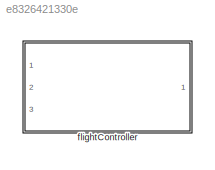
MODEL slx_e8326421330e
KIND library
CONFIG AbsTol = auto
CONFIG EnableMultiTasking = off
CONFIG FixedStep = auto
CONFIG MaxStep = auto
CONFIG MinStep = auto
CONFIG RelTol = 1e-3
CONFIG SampleTimeConstraint = Unconstrained
CONFIG SolverName = VariableStepAuto
CONFIG StartTime = 0.0
CONFIG StopTime = 10.0
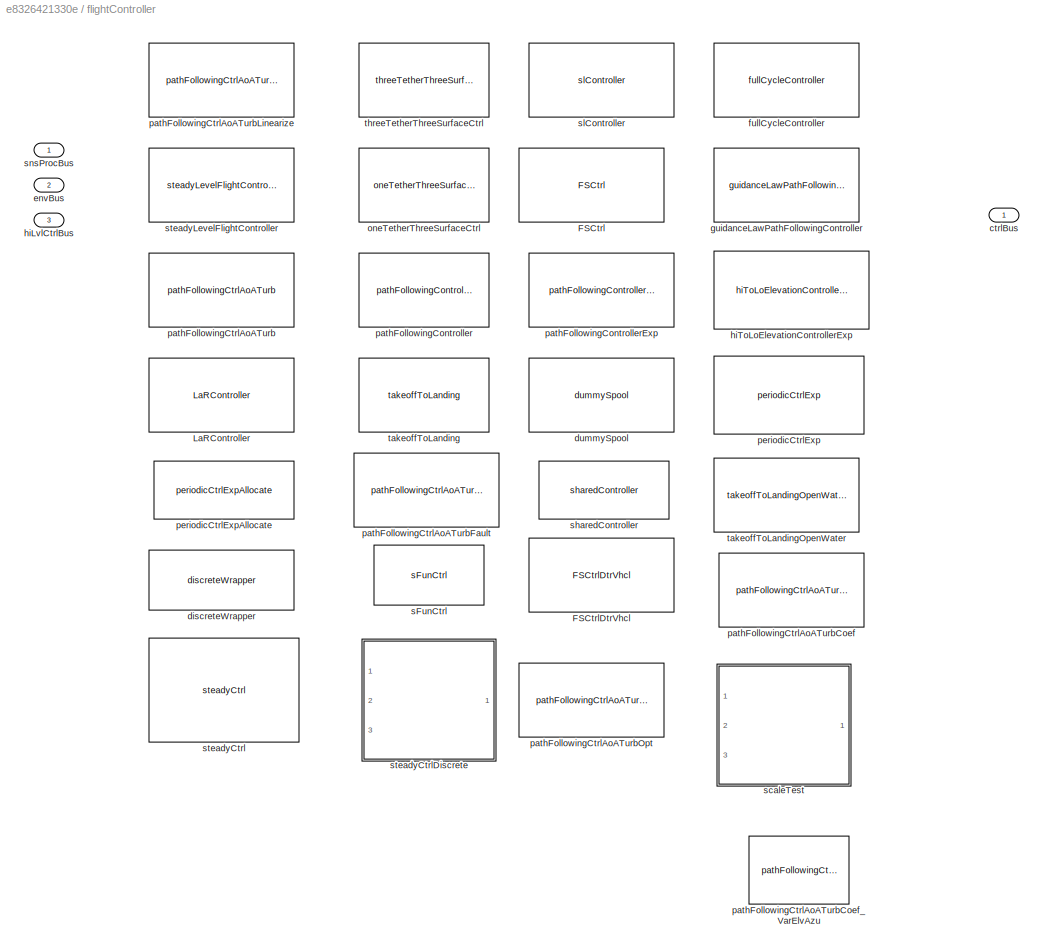
BLOCK [SubSystem] flightController
  InitFcn = initializeVariantsFromBlock(gcb)
  LoadFcn = initializeVariantsFromBlock(gcb)
  Ports = [3, 1]
  PreSaveFcn = initializeVariantsFromBlock(gcb)
  RequestExecContextInheritance = off
  StartFcn = initializeVariantsFromBlock(gcb)
  Variant = on
BLOCK [Reference] flightController/FSCtrl  REF=FSCtrl_cl/FSCtrl
  Ports = [3, 1]
  SourceBlock = FSCtrl_cl/FSCtrl
BLOCK [Reference] flightController/FSCtrlDtrVhcl  REF=FSCtrlDtrVhcl_cl/FSCtrlDtrVhcl
  Ports = [3, 1]
  SourceBlock = FSCtrlDtrVhcl_cl/FSCtrlDtrVhcl
BLOCK [Reference] flightController/LaRController  REF=LaRController_cl/LaRController
  Ports = [3, 1]
  SourceBlock = LaRController_cl/LaRController
BLOCK [Outport] flightController/ctrlBus
  OutDataTypeStr = Bus: fltCtrlBus
  VectorParamsAs1DForOutWhenUnconnected = off
BLOCK [Reference] flightController/discreteWrapper  REF=discreteWrapper/discreteWrapper
  Ports = [3, 1]
  SourceBlock = discreteWrapper/discreteWrapper
  SourceType = SubSystem
BLOCK [Reference] flightController/dummySpool  REF=dummySpool_cl/dummySpool
  Ports = [3, 1]
  SourceBlock = dummySpool_cl/dummySpool
BLOCK [Inport] flightController/envBus
  OutDataTypeStr = Bus: envBus
  Port = 2
BLOCK [Reference] flightController/fullCycleController  REF=fullCycleController_cl/fullCycleController
  Ports = [3, 1]
  SourceBlock = fullCycleController_cl/fullCycleController
BLOCK [Reference] flightController/guidanceLawPathFollowingController  REF=guidanceLawPathFollowingController/guidanceLawPathFollowingController
  Ports = [3, 1]
  SourceBlock = guidanceLawPathFollowingController/guidanceLawPathFollowingController
BLOCK [Inport] flightController/hiLvlCtrlBus
  OutDataTypeStr = Bus: hiLvlCtrlBus
  Port = 3
BLOCK [Reference] flightController/hiToLoElevationControllerExp  REF=hiToLoElevationControllerExp/hiToLoElevationControllerExp
  Ports = [3, 1]
  SourceBlock = hiToLoElevationControllerExp/hiToLoElevationControllerExp
BLOCK [Reference] flightController/oneTetherThreeSurfaceCtrl  REF=oneTetherThreeSurfaceCtrl_cl/oneTetherThreeSurfaceCtrl
  Ports = [3, 1]
  SourceBlock = oneTetherThreeSurfaceCtrl_cl/oneTetherThreeSurfaceCtrl
  SourceType = SubSystem
BLOCK [Reference] flightController/pathFollowingController  REF=pathFollowingController_cl/pathFollowingController
  Ports = [3, 1]
  SourceBlock = pathFollowingController_cl/pathFollowingController
BLOCK [Reference] flightController/pathFollowingControllerExp  REF=pathFollowingControllerExp_cl/pathFollowingControllerExp
  Ports = [3, 1]
  SourceBlock = pathFollowingControllerExp_cl/pathFollowingControllerExp
BLOCK [Reference] flightController/pathFollowingCtrlAoATurb  REF=pathFollowingCtrlAoATurb_cl/pathFollowingCtrlAoATurb
  Ports = [3, 1]
  SourceBlock = pathFollowingCtrlAoATurb_cl/pathFollowingCtrlAoATurb
BLOCK [Reference] flightController/pathFollowingCtrlAoATurbCoef  REF=pathFollowingCtrlAoATurbCoef_cl/pathFollowingCtrlAoATurbCoef
  Ports = [3, 1]
  SourceBlock = pathFollowingCtrlAoATurbCoef_cl/pathFollowingCtrlAoATurbCoef
BLOCK [Reference] flightController/pathFollowingCtrlAoATurbCoef_VarElvAzu  REF=pathFollowingCtrlAoATurbCoef_VarElvAzu_cl/pathFollowingCtrlAoATurbCoef_VarElvAzu
  Ports = [5, 1]
  SourceBlock = pathFollowingCtrlAoATurbCoef_VarElvAzu_cl/pathFollowingCtrlAoATurbCoef_VarElvAzu
BLOCK [Reference] flightController/pathFollowingCtrlAoATurbFault  REF=pathFollowingCtrlAoATurbFault_cl/pathFollowingCtrlAoATurbFault
  Ports = [3, 1]
  SourceBlock = pathFollowingCtrlAoATurbFault_cl/pathFollowingCtrlAoATurbFault
BLOCK [Reference] flightController/pathFollowingCtrlAoATurbLinearize  REF=pathFollowingCtrlAoATurbLinearize_cl/pathFollowingCtrlAoATurbLinearize
  Ports = [3, 1]
  SourceBlock = pathFollowingCtrlAoATurbLinearize_cl/pathFollowingCtrlAoATurbLinearize
BLOCK [Reference] flightController/pathFollowingCtrlAoATurbOpt  REF=pathFollowingCtrlAoATurbOpt_cl/pathFollowingCtrlAoATurbOpt
  Ports = [3, 1]
  SourceBlock = pathFollowingCtrlAoATurbOpt_cl/pathFollowingCtrlAoATurbOpt
BLOCK [Reference] flightController/periodicCtrlExp  REF=periodicCtrlExp/periodicCtrlExp
  Ports = [3, 1]
  SourceBlock = periodicCtrlExp/periodicCtrlExp
BLOCK [Reference] flightController/periodicCtrlExpAllocate  REF=periodicCtrlExpAllocate/periodicCtrlExpAllocate
  Ports = [3, 1]
  SourceBlock = periodicCtrlExpAllocate/periodicCtrlExpAllocate
BLOCK [Reference] flightController/sFunCtrl  REF=sFunCtrl/sFunCtrl
  Ports = [3, 1]
  SourceBlock = sFunCtrl/sFunCtrl
  SourceType = SubSystem
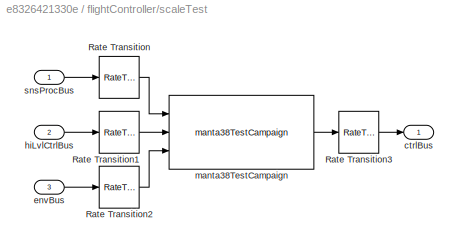
BLOCK [SubSystem] flightController/scaleTest
  Ports = [3, 1]
  RequestExecContextInheritance = off
  VariantControl = strcmpi(FLIGHTCONTROLLER,'scaleTest')
BLOCK [RateTransition] flightController/scaleTest/Rate Transition
  InitialCondition = 1
  OutPortSampleTime = fltCtrl.Ts.Value
BLOCK [RateTransition] flightController/scaleTest/Rate Transition1
  InitialCondition = 1
  OutPortSampleTime = fltCtrl.Ts.Value
BLOCK [RateTransition] flightController/scaleTest/Rate Transition2
  InitialCondition = 1
  OutPortSampleTime = fltCtrl.Ts.Value
BLOCK [RateTransition] flightController/scaleTest/Rate Transition3
BLOCK [Outport] flightController/scaleTest/ctrlBus
BLOCK [Inport] flightController/scaleTest/envBus
  Port = 3
BLOCK [Inport] flightController/scaleTest/hiLvlCtrlBus
  Port = 2
BLOCK [Reference] flightController/scaleTest/manta38TestCampaign  REF=manta38TestCampaign/manta38TestCampaign
  Ports = [3, 1]
  SourceBlock = manta38TestCampaign/manta38TestCampaign
BLOCK [Inport] flightController/scaleTest/snsProcBus
BLOCK [Reference] flightController/sharedController  REF=sharedController/sharedController
  Ports = [3, 1]
  SourceBlock = sharedController/sharedController
BLOCK [Reference] flightController/slController  REF=slController_cl/slController
  Ports = [3, 1]
  SourceBlock = slController_cl/slController
BLOCK [Inport] flightController/snsProcBus
  OutDataTypeStr = Bus: sensorsProcessingBus
BLOCK [Reference] flightController/steadyCtrl  REF=steadyCtrl/steadyCtrl
  Ports = [3, 1]
  SourceBlock = steadyCtrl/steadyCtrl
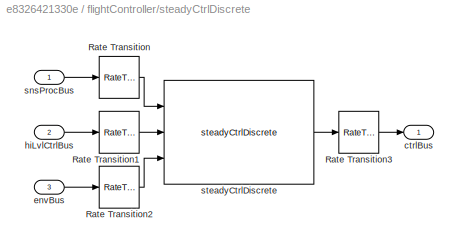
BLOCK [SubSystem] flightController/steadyCtrlDiscrete
  Ports = [3, 1]
  RequestExecContextInheritance = off
  VariantControl = strcmpi(FLIGHTCONTROLLER,'steadyCtrlDiscrete')
BLOCK [RateTransition] flightController/steadyCtrlDiscrete/Rate Transition
  InitialCondition = 1
  OutPortSampleTime = fltCtrl.Ts.Value
BLOCK [RateTransition] flightController/steadyCtrlDiscrete/Rate Transition1
  InitialCondition = 1
  OutPortSampleTime = fltCtrl.Ts.Value
BLOCK [RateTransition] flightController/steadyCtrlDiscrete/Rate Transition2
  InitialCondition = 1
  OutPortSampleTime = fltCtrl.Ts.Value
BLOCK [RateTransition] flightController/steadyCtrlDiscrete/Rate Transition3
BLOCK [Outport] flightController/steadyCtrlDiscrete/ctrlBus
BLOCK [Inport] flightController/steadyCtrlDiscrete/envBus
  Port = 3
BLOCK [Inport] flightController/steadyCtrlDiscrete/hiLvlCtrlBus
  Port = 2
BLOCK [Inport] flightController/steadyCtrlDiscrete/snsProcBus
BLOCK [Reference] flightController/steadyCtrlDiscrete/steadyCtrlDiscrete  REF=steadyCtrlDiscrete/steadyCtrlDiscrete
  Ports = [3, 1]
  SourceBlock = steadyCtrlDiscrete/steadyCtrlDiscrete
BLOCK [Reference] flightController/steadyLevelFlightController  REF=steadyLevelFlightController_cl/steadyLevelFlightController
  Ports = [3, 1]
  SourceBlock = steadyLevelFlightController_cl/steadyLevelFlightController
BLOCK [Reference] flightController/takeoffToLanding  REF=takeoffToLanding_cl/takeoffToLanding
  Ports = [3, 1]
  SourceBlock = takeoffToLanding_cl/takeoffToLanding
BLOCK [Reference] flightController/takeoffToLandingOpenWater  REF=takeoffToLandingOpenWater_cl/takeoffToLandingOpenWater
  Ports = [3, 1]
  SourceBlock = takeoffToLandingOpenWater_cl/takeoffToLandingOpenWater
BLOCK [Reference] flightController/threeTetherThreeSurfaceCtrl  REF=threeTetherThreeSurfaceCtrl_cl/threeTetherThreeSurfaceCtrl
  Ports = [3, 1]
  SourceBlock = threeTetherThreeSurfaceCtrl_cl/threeTetherThreeSurfaceCtrl
LINE flightController/scaleTest/Rate Transition1:1 -> flightController/scaleTest/manta38TestCampaign:2
LINE flightController/scaleTest/Rate Transition2:1 -> flightController/scaleTest/manta38TestCampaign:3
LINE flightController/scaleTest/Rate Transition3:1 -> flightController/scaleTest/ctrlBus:1
LINE flightController/scaleTest/Rate Transition:1 -> flightController/scaleTest/manta38TestCampaign:1
LINE flightController/scaleTest/envBus:1 -> flightController/scaleTest/Rate Transition2:1
LINE flightController/scaleTest/hiLvlCtrlBus:1 -> flightController/scaleTest/Rate Transition1:1
LINE flightController/scaleTest/manta38TestCampaign:1 -> flightController/scaleTest/Rate Transition3:1
LINE flightController/scaleTest/snsProcBus:1 -> flightController/scaleTest/Rate Transition:1
LINE flightController/steadyCtrlDiscrete/Rate Transition1:1 -> flightController/steadyCtrlDiscrete/steadyCtrlDiscrete:2
LINE flightController/steadyCtrlDiscrete/Rate Transition2:1 -> flightController/steadyCtrlDiscrete/steadyCtrlDiscrete:3
LINE flightController/steadyCtrlDiscrete/Rate Transition3:1 -> flightController/steadyCtrlDiscrete/ctrlBus:1
LINE flightController/steadyCtrlDiscrete/Rate Transition:1 -> flightController/steadyCtrlDiscrete/steadyCtrlDiscrete:1
LINE flightController/steadyCtrlDiscrete/envBus:1 -> flightController/steadyCtrlDiscrete/Rate Transition2:1
LINE flightController/steadyCtrlDiscrete/hiLvlCtrlBus:1 -> flightController/steadyCtrlDiscrete/Rate Transition1:1
LINE flightController/steadyCtrlDiscrete/snsProcBus:1 -> flightController/steadyCtrlDiscrete/Rate Transition:1
LINE flightController/steadyCtrlDiscrete/steadyCtrlDiscrete:1 -> flightController/steadyCtrlDiscrete/Rate Transition3:1
